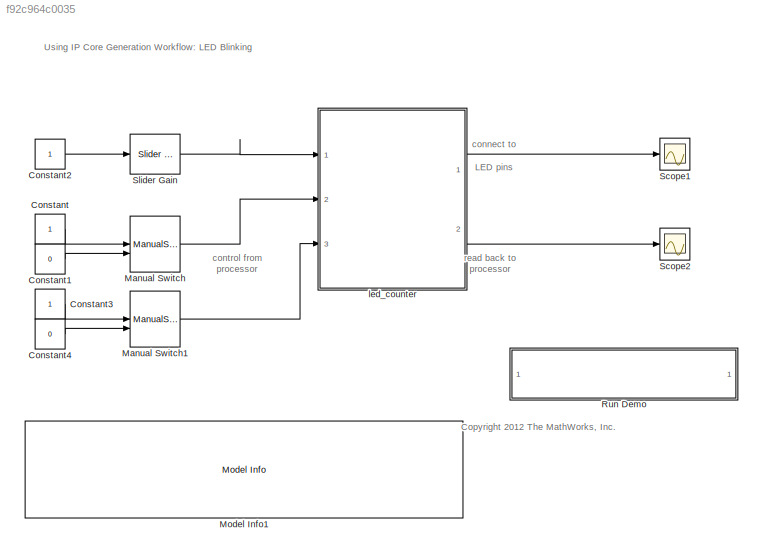
MODEL slx_f92c964c0035
KIND model
CONFIG AbsTol = auto
CONFIG EnableMultiTasking = off
CONFIG FixedStep = auto
CONFIG InitFcn = Ts = 1e-3;
CONFIG MaxStep = auto
CONFIG MinStep = auto
CONFIG RelTol = 1e-3
CONFIG SampleTimeConstraint = Unconstrained
CONFIG Solver = VariableStepAuto
CONFIG SolverName = VariableStepAuto
CONFIG StartTime = 0.0
CONFIG StopTime = 10.0
BLOCK [Constant] Constant
  OutDataTypeStr = boolean
  SampleTime = Ts
BLOCK [Constant] Constant1
  OutDataTypeStr = boolean
  SampleTime = Ts
  Value = 0
BLOCK [Constant] Constant2
  OutDataTypeStr = fixdt(0, 4, 0)
  SampleTime = Ts
BLOCK [Constant] Constant3
  OutDataTypeStr = boolean
  SampleTime = Ts
BLOCK [Constant] Constant4
  OutDataTypeStr = boolean
  SampleTime = Ts
  Value = 0
BLOCK [ManualSwitch] Manual Switch
  CurrentSetting = 0
BLOCK [ManualSwitch] Manual Switch1
BLOCK [Reference] Model Info1  REF=simulink/Model-Wide
Utilities/Model Info
  Ports = []
  SourceBlock = simulink/Model-Wide\nUtilities/Model Info
  SourceProductBaseCode = SL
  SourceProductName = Simulink
  SourceType = CMBlock
BLOCK [SubSystem] Run Demo
  OpenFcn = hdladvisor([bdroot, '/led_counter'])
  Ports = []
  RequestExecContextInheritance = off
BLOCK [Scope] Scope1
  Floating = off
  NumInputPorts = 1
  Ports = [1]
  ScopeSpecificationString = C++SS(StrPVP('Location','[612, 509, 934, 748]'),StrPVP('Open','off'),MxPVP('AxesTitles',53,'struct(''axes1'',''%<SignalLabel>'')'),MxPVP('ScopeGraphics',56,'struct(''FigureColor'',''[0.5 0.5 0.5]'',''AxesColor'',''[0 0 0]'',''AxesTickColor'',''[1 1 1]'',''LineColors'',''[1 1 0;1 0 1;0 1 1;1 0 0;0 1 0;0 0 1]'',''LineStyles'',''-|-|-|-|-|-'',''LineWidths'',''[0.5 0.5 0.5 0.5 0.5 0.5]'',''MarkerStyle...<+272ch>
BLOCK [Scope] Scope2
  Floating = off
  NumInputPorts = 1
  Ports = [1]
  ScopeSpecificationString = Simulink.scopes.TimeScopeBlockCfg('CurrentConfiguration', extmgr.ConfigurationSet(extmgr.Configuration('Core','General UI',true),extmgr.Configuration('Core','Source UI',true),extmgr.Configuration('Sources','WiredSimulink',true,'DataLoggingSaveFormat','StructureWithTime','DataLoggingDecimation','1','DataLoggingDecimateData',true),extmgr.Configuration('Visuals','Time Domain',true,'SerializedDisplays...<+1571ch>
BLOCK [Reference] Slider Gain  REF=simulink/Math
Operations/Slider
Gain
  Ports = [1, 1]
  SourceBlock = simulink/Math\nOperations/Slider\nGain
  SourceProductBaseCode = SL
  SourceProductName = Simulink
  SourceType = Slider Gain
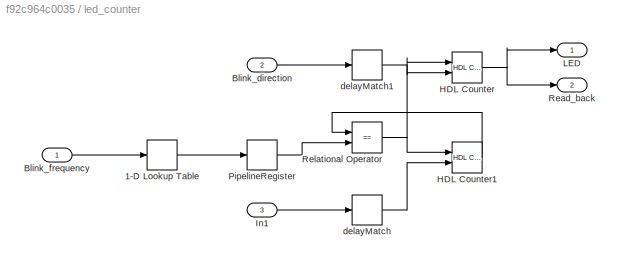
BLOCK [SubSystem] led_counter
  Ports = [3, 2]
  RequestExecContextInheritance = off
  TreatAsAtomicUnit = on
BLOCK [Lookup_n-D] led_counter/1-D Lookup Table
  BreakpointsForDimension1 = [0 1 2 3 4 5 6 7 8 9 10 11 12 13 14 15]
  DiagnosticForOutOfRangeInput = Error
  InterpMethod = Flat
  NumberOfTableDimensions = 1
  OutDataTypeStr = fixdt(0, 24, 0)
  Ports = [1, 1]
  RndMeth = Simplest
  SampleTime = 0.001
  Table = reshape([8388608;4194304;2097152;1048576;524288;262144;131072;65536;32768;16384;8192;4096;2048;1024;512;256], [1  16])
BLOCK [Inport] led_counter/Blink_direction
  IconDisplay = Port number
  OutDataTypeStr = boolean
  Port = 2
  PortDimensions = 1
  SampleTime = 0.001
BLOCK [Inport] led_counter/Blink_frequency
  IconDisplay = Port number
  OutDataTypeStr = fixdt(0, 4, 0)
  PortDimensions = 1
  SampleTime = 0.001
BLOCK [Reference] led_counter/HDL Counter  REF=hdlsllib/Sources/HDL Counter
  Ports = [2, 1]
  SourceBlock = hdlsllib/Sources/HDL Counter
  SourceProductBaseCode = SL
  SourceProductName = Simulink
  SourceType = HDL Counter
BLOCK [Reference] led_counter/HDL Counter1  REF=hdlsllib/Sources/HDL Counter
  Ports = [2, 1]
  SourceBlock = hdlsllib/Sources/HDL Counter
  SourceProductBaseCode = SL
  SourceProductName = Simulink
  SourceType = HDL Counter
BLOCK [Inport] led_counter/In1
  IconDisplay = Port number
  OutDataTypeStr = boolean
  Port = 3
  PortDimensions = 1
  SampleTime = 0.001
BLOCK [Outport] led_counter/LED
  IconDisplay = Port number
BLOCK [Delay] led_counter/PipelineRegister
  DelayLength = double(1)
  InitialCondition = 0
  InputPortMap = u0
  Ports = [1, 1]
  SampleTime = 0.001
BLOCK [Outport] led_counter/Read_back
  IconDisplay = Port number
  Port = 2
BLOCK [RelationalOperator] led_counter/Relational Operator
  InputSameDT = off
  Operator = ==
  OutDataTypeStr = boolean
  Ports = [2, 1]
  SampleTime = 0.001
BLOCK [Delay] led_counter/delayMatch
  DelayLength = double(1)
  InitialCondition = 0
  InputPortMap = u0
  Ports = [1, 1]
  SampleTime = 0.001
BLOCK [Delay] led_counter/delayMatch1
  DelayLength = double(1)
  InitialCondition = 0
  InputPortMap = u0
  Ports = [1, 1]
  SampleTime = 0.001
ANNOTATION (root): <copyright redacted>
ANNOTATION (root): Using IP Core Generation Workflow: LED Blinking
ANNOTATION (root): connect to LED pins
ANNOTATION (root): control from processor
ANNOTATION (root): read back to processor
LINE Constant1:1 -> Manual Switch:2
LINE Constant2:1 -> Slider Gain:1
LINE Constant3:1 -> Manual Switch1:1
LINE Constant4:1 -> Manual Switch1:2
LINE Constant:1 -> Manual Switch:1
LINE Manual Switch1:1 -> led_counter:3
LINE Manual Switch:1 -> led_counter:2
LINE Slider Gain:1 -> led_counter:1
LINE led_counter/1-D Lookup Table:1 -> led_counter/PipelineRegister:1
LINE led_counter/Blink_direction:1 -> led_counter/delayMatch1:1
LINE led_counter/Blink_frequency:1 -> led_counter/1-D Lookup Table:1
LINE led_counter/HDL Counter1:1 -> led_counter/Relational Operator:1
NET led_counter/HDL Counter:1 -> led_counter/LED:1, led_counter/Read_back:1
LINE led_counter/In1:1 -> led_counter/delayMatch:1
LINE led_counter/PipelineRegister:1 -> led_counter/Relational Operator:2
NET led_counter/Relational Operator:1 -> led_counter/HDL Counter1:1, led_counter/HDL Counter:1
LINE led_counter/delayMatch1:1 -> led_counter/HDL Counter:2
LINE led_counter/delayMatch:1 -> led_counter/HDL Counter1:2
LINE led_counter:1 -> Scope1:1
LINE led_counter:2 -> Scope2:1
note: NET lines group one-source signal fan-out (src -> all destinations, sorted); 1:1 wires keep LINE
